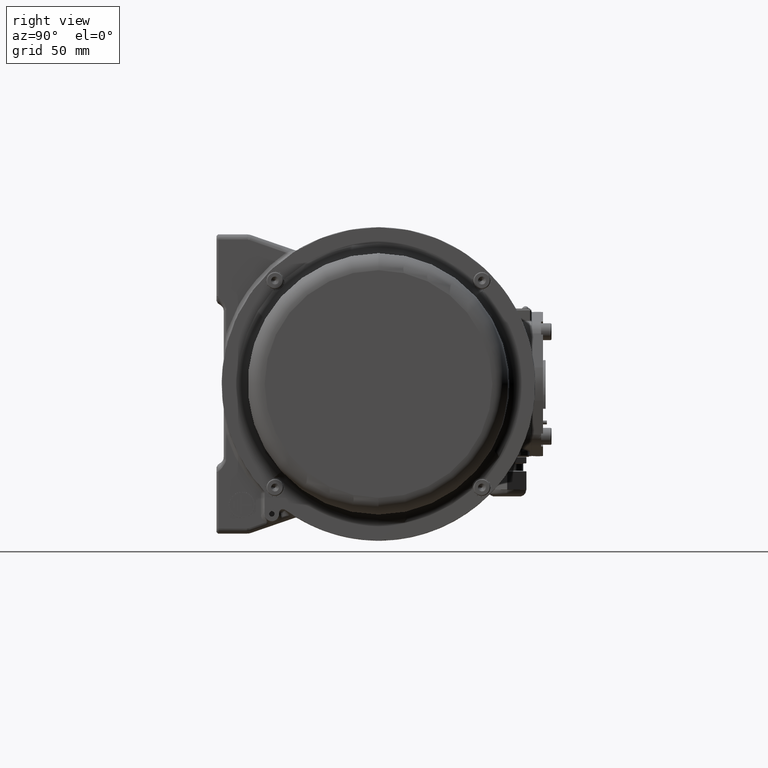
[diagram: clean part render]
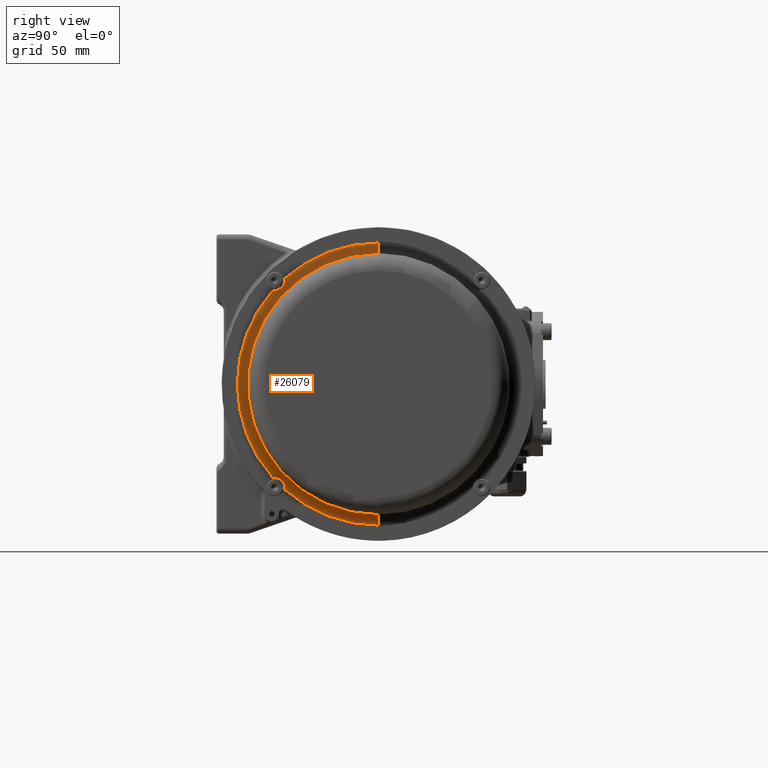
[diagram: same view with one face highlighted and labeled with its STEP entity id]
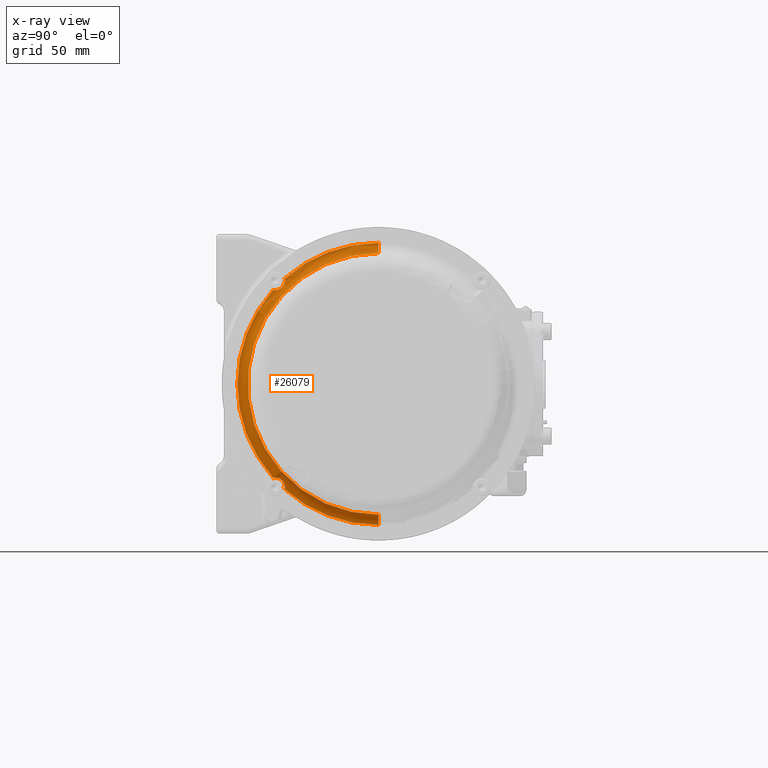
[diagram: x-ray of the same camera — body ghosted, the highlighted face saturated]
A machine part, right view. The second image highlights one B-rep face of the part: STEP entity #26079.
The next image is the same camera in x-ray: the body ghosted, the highlighted face saturated — about 0% of this face is hidden behind the body in this view.
In plain terms, the highlighted toroidal blend (fillet) surface has major radius 108.5 mm and minor (blend) radius 8 mm.
Its self-contained STEP definition (entity closure, byte-faithful):
#51 = ORIENTED_EDGE ( 'NONE', *, *, #132094, .T. ) ;
#60 = CARTESIAN_POINT ( 'NONE',  ( 111.8420498956300000, -43.88582275935325300, 73.30189940365770000 ) ) ;
#481 = B_SPLINE_CURVE_WITH_KNOTS ( 'NONE', 3,
 ( #172896, #65589, #80993, #188330 ),
 .UNSPECIFIED., .F., .F.,
 ( 4, 4 ),
 ( 0.006751035793015104000, 0.006953269603852640400 ),
 .UNSPECIFIED. ) ;
#630 = CARTESIAN_POINT ( 'NONE',  ( 111.8420498956300000, -44.88995432382945000, -72.19079341729239700 ) ) ;
#1609 = B_SPLINE_CURVE_WITH_KNOTS ( 'NONE', 3,
 ( #99178, #191098, #22698, #130022 ),
 .UNSPECIFIED., .F., .F.,
 ( 4, 4 ),
 ( 2.483688137834360200E-006, 0.0005613291327000745100 ),
 .UNSPECIFIED. ) ;
#1677 = CARTESIAN_POINT ( 'NONE',  ( 112.0752210845640800, -42.32397478651963500, -72.11289599017614200 ) ) ;
#2371 = EDGE_CURVE ( 'NONE', #163899, #196072, #193100, .T. ) ;
#2890 = CIRCLE ( 'NONE', #124764, 108.5000000000000000 ) ;
#4761 = ORIENTED_EDGE ( 'NONE', *, *, #195947, .F. ) ;
#5199 = VERTEX_POINT ( 'NONE', #132849 ) ;
#5236 = EDGE_CURVE ( 'NONE', #99633, #36353, #125765, .T. ) ;
#5850 = CARTESIAN_POINT ( 'NONE',  ( 112.6257674597845400, -37.47687606934471900, 74.96849447704070700 ) ) ;
#5991 = VERTEX_POINT ( 'NONE', #102080 ) ;
#6951 = CIRCLE ( 'NONE', #116452, 108.5000000000000000 ) ;
#7503 = EDGE_CURVE ( 'NONE', #157430, #135575, #177285, .T. ) ;
#8187 = DIRECTION ( 'NONE',  ( 1.321531958377189800E-016, 0.0000000000000000000, -1.000000000000000000 ) ) ;
#8709 = CIRCLE ( 'NONE', #64801, 108.5000000000000000 ) ;
#8807 = ORIENTED_EDGE ( 'NONE', *, *, #61356, .F. ) ;
#10979 = B_SPLINE_CURVE_WITH_KNOTS ( 'NONE', 3,
 ( #124174, #16849, #47682, #154985 ),
 .UNSPECIFIED., .F., .F.,
 ( 4, 4 ),
 ( 0.0001188698218495185400, 0.0004912911978566967700 ),
 .UNSPECIFIED. ) ;
#11070 = CARTESIAN_POINT ( 'NONE',  ( 112.5198977644838700, -38.58362746811074100, -74.19125443199489200 ) ) ;
#11131 = VERTEX_POINT ( 'NONE', #22274 ) ;
#12335 = AXIS2_PLACEMENT_3D ( 'NONE', #192049, #100118, #8187 ) ;
#12649 = CARTESIAN_POINT ( 'NONE',  ( 112.5699490064735800, -38.04639649115223000, 74.57120509917707800 ) ) ;
#12919 = CARTESIAN_POINT ( 'NONE',  ( 111.9964024334694300, -35.95780073525168100, -78.99146378952470100 ) ) ;
#13744 = CARTESIAN_POINT ( 'NONE',  ( 111.9074876328373300, -43.62213579719098500, 72.04764357947362900 ) ) ;
#14448 = CARTESIAN_POINT ( 'NONE',  ( 112.5870271494425800, -39.21730014543698000, 73.33273355225573200 ) ) ;
#14718 = DIRECTION ( 'NONE',  ( -1.000000000000000000, -3.469446951954334500E-018, -1.053574978650703900E-016 ) ) ;
#14729 = ORIENTED_EDGE ( 'NONE', *, *, #38791, .F. ) ;
#14770 = EDGE_LOOP ( 'NONE', ( #120169, #8807, #86693, #120550, #188113, #98905, #170669, #17335, #65893, #67474, #66444, #172595, #130737, #4761, #104908, #179977, #14729, #96964, #146582, #191799, #192338, #77611, #38389, #78160, #148244, #188167, #24013, #193482, #153692, #26440, #72644, #117509, #81120, #51 ) ) ;
#16824 = CARTESIAN_POINT ( 'NONE',  ( 111.8420498956300000, 36.10843668353454900, -4.163676230620184700E-014 ) ) ;
#16849 = CARTESIAN_POINT ( 'NONE',  ( 112.5365635887543800, -38.58881153000414300, -74.12968071128705100 ) ) ;
#17010 = CARTESIAN_POINT ( 'NONE',  ( 111.8490561906860000, -36.01623768078270200, 80.60865072355339600 ) ) ;
#17066 = CARTESIAN_POINT ( 'NONE',  ( 111.8680308510703400, -43.96106079898821400, -72.04776527091499400 ) ) ;
#17101 = B_SPLINE_CURVE_WITH_KNOTS ( 'NONE', 3,
 ( #106689, #121449, #91944, #60 ),
 .UNSPECIFIED., .F., .F.,
 ( 4, 4 ),
 ( 1.881930274056274600E-006, 0.001240401368589145200 ),
 .UNSPECIFIED. ) ;
#17335 = ORIENTED_EDGE ( 'NONE', *, *, #178540, .F. ) ;
#18015 = AXIS2_PLACEMENT_3D ( 'NONE', #180791, #88973, #196299 ) ;
#19001 = CIRCLE ( 'NONE', #154508, 108.5000000000000000 ) ;
#19588 = CARTESIAN_POINT ( 'NONE',  ( 111.8870103636902100, -35.95325773612955100, -79.97680043636060500 ) ) ;
#19690 = CARTESIAN_POINT ( 'NONE',  ( 111.8490561906860000, -44.50021404001860500, -72.12467436431759900 ) ) ;
#19788 = CARTESIAN_POINT ( 'NONE',  ( 111.8420498956300000, -36.25900132201496700, 80.76312731268734500 ) ) ;
#21098 = VERTEX_POINT ( 'NONE', #97899 ) ;
#22274 = CARTESIAN_POINT ( 'NONE',  ( 111.8870103636902100, -35.95325773612955100, -79.97680043636060500 ) ) ;
#22698 = CARTESIAN_POINT ( 'NONE',  ( 111.8420498956298800, -44.46453183604978000, -72.49550311787098200 ) ) ;
#24013 = ORIENTED_EDGE ( 'NONE', *, *, #46448, .F. ) ;
#24069 = CARTESIAN_POINT ( 'NONE',  ( 119.8420498956300100, 36.10843668353453500, 108.4999999999999600 ) ) ;
#24973 = FACE_OUTER_BOUND ( 'NONE', #14770, .T. ) ;
#26079 = ADVANCED_FACE ( 'NONE', ( #24973 ), #87337, .F. ) ;
#26440 = ORIENTED_EDGE ( 'NONE', *, *, #194534, .F. ) ;
#26553 = CARTESIAN_POINT ( 'NONE',  ( 112.4877685105482100, -38.66496212051189500, -74.21473860660800900 ) ) ;
#28049 = B_SPLINE_CURVE_WITH_KNOTS ( 'NONE', 3,
 ( #82293, #5850, #37363, #144622, #52788, #160072, #68207, #175517, #83638, #190963 ),
 .UNSPECIFIED., .F., .F.,
 ( 4, 2, 2, 2, 4 ),
 ( 6.759244170750891700E-006, 0.001644570974715738000, 0.003282382705260724700, 0.004920194435805712000, 0.006558006166350698700 ),
 .UNSPECIFIED. ) ;
#28129 = CARTESIAN_POINT ( 'NONE',  ( 112.5364732288682000, -38.07073905484065100, 74.65170348619879800 ) ) ;
#28405 = CARTESIAN_POINT ( 'NONE',  ( 112.1462009766611500, -36.08324267808023900, -78.01557025029306700 ) ) ;
#29870 = CARTESIAN_POINT ( 'NONE',  ( 112.6420498956300100, -38.44644202796184400, 73.95454822872889600 ) ) ;
#30132 = CARTESIAN_POINT ( 'NONE',  ( 111.8420498956300000, -36.06928962599144500, 80.93202436223359100 ) ) ;
#30582 = VERTEX_POINT ( 'NONE', #134010 ) ;
#31782 = DIRECTION ( 'NONE',  ( -1.000000000000000000, 1.714077650504639900E-032, 2.832402298722609900E-018 ) ) ;
#32261 = DIRECTION ( 'NONE',  ( 0.0000000000000000000, 0.0000000000000000000, -1.000000000000000000 ) ) ;
#32449 = CARTESIAN_POINT ( 'NONE',  ( 111.8444632090095200, -36.20152907129149600, 80.59002493914692900 ) ) ;
#34311 = CARTESIAN_POINT ( 'NONE',  ( 111.8740538925732000, -35.96469288689860400, -80.14423345341700200 ) ) ;
#34386 = CIRCLE ( 'NONE', #86095, 105.0128808451673900 ) ;
#36097 = CARTESIAN_POINT ( 'NONE',  ( 112.6420498956300100, -37.99505181014745100, 74.40684200037040300 ) ) ;
#36353 = VERTEX_POINT ( 'NONE', #34311 ) ;
#37155 = DIRECTION ( 'NONE',  ( -1.000000000000000000, 1.714077650504639900E-032, 2.832402298722609900E-018 ) ) ;
#37363 = CARTESIAN_POINT ( 'NONE',  ( 112.5778733840662800, -37.16169772394431400, 75.41262721611858000 ) ) ;
#38079 = VERTEX_POINT ( 'NONE', #41404 ) ;
#38389 = ORIENTED_EDGE ( 'NONE', *, *, #189850, .F. ) ;
#38791 = EDGE_CURVE ( 'NONE', #105149, #198562, #133896, .T. ) ;
#39209 = B_SPLINE_CURVE_WITH_KNOTS ( 'NONE', 3,
 ( #43139, #134980, #104858, #12919, #120280, #28405, #135653, #43800, #151100, #59227, #166529, #74673, #181954, #90107 ),
 .UNSPECIFIED., .F., .F.,
 ( 4, 2, 2, 2, 2, 2, 4 ),
 ( 0.004795156085363194000, 0.005535358833647006200, 0.006275561581930818400, 0.007755967078498449800, 0.008496169826782269000, 0.009236372575066086400, 0.01071677807163372500 ),
 .UNSPECIFIED. ) ;
#39469 = DIRECTION ( 'NONE',  ( 0.0000000000000000000, 0.0000000000000000000, -1.000000000000000000 ) ) ;
#41052 = VERTEX_POINT ( 'NONE', #36097 ) ;
#41404 = CARTESIAN_POINT ( 'NONE',  ( 112.6420498956300100, -38.44644202796189300, -73.95454822872901000 ) ) ;
#43139 = CARTESIAN_POINT ( 'NONE',  ( 111.8870103636902100, -35.95325773612955100, -79.97680043636060500 ) ) ;
#43384 = VERTEX_POINT ( 'NONE', #93452 ) ;
#43533 = CARTESIAN_POINT ( 'NONE',  ( 112.5036575374300400, -38.09470383843019900, 74.73262323008660200 ) ) ;
#43800 = CARTESIAN_POINT ( 'NONE',  ( 112.3534336911470500, -36.44009618143410700, -76.84834474557048600 ) ) ;
#43829 = VERTEX_POINT ( 'NONE', #73105 ) ;
#44329 = CARTESIAN_POINT ( 'NONE',  ( 111.8439195439227900, -36.04591255289024300, 80.79913467954240500 ) ) ;
#44602 = CARTESIAN_POINT ( 'NONE',  ( 111.9341069294922900, -43.37587781290431400, 72.04574185538470500 ) ) ;
#44784 = DIRECTION ( 'NONE',  ( -1.000000000000000000, 1.714077650504639900E-032, 2.832402298722609900E-018 ) ) ;
#45142 = CARTESIAN_POINT ( 'NONE',  ( 111.8420498956300000, -44.88995432382950000, 72.19079341729218400 ) ) ;
#45456 = CARTESIAN_POINT ( 'NONE',  ( 111.8420498956297800, -36.78502156970282800, -80.05482579214626100 ) ) ;
#46448 = EDGE_CURVE ( 'NONE', #11131, #21098, #39209, .T. ) ;
#47218 = CARTESIAN_POINT ( 'NONE',  ( 112.6420498956300100, -38.44644202796189300, -73.95454822872901000 ) ) ;
#47682 = CARTESIAN_POINT ( 'NONE',  ( 112.5879896737014300, -38.51344409867239400, -74.04549758096487700 ) ) ;
#47864 = CARTESIAN_POINT ( 'NONE',  ( 111.8420498956300000, -36.57279362661005000, 80.55860451003179900 ) ) ;
#50633 = CARTESIAN_POINT ( 'NONE',  ( 111.8439195439227900, -36.04591255289024300, 80.79913467954240500 ) ) ;
#52121 = EDGE_CURVE ( 'NONE', #102199, #185448, #144409, .T. ) ;
#52237 = EDGE_CURVE ( 'NONE', #56084, #144283, #73051, .T. ) ;
#52788 = CARTESIAN_POINT ( 'NONE',  ( 112.3501730843897000, -36.41624959881043100, 76.86744736616121500 ) ) ;
#53564 = CARTESIAN_POINT ( 'NONE',  ( 111.8420498956300100, 36.10843668353453500, 108.4999999999999600 ) ) ;
#53666 = EDGE_CURVE ( 'NONE', #83081, #152985, #65033, .T. ) ;
#54004 = CARTESIAN_POINT ( 'NONE',  ( 112.6420498956300100, -38.44644202796184400, 73.95454822872889600 ) ) ;
#56084 = VERTEX_POINT ( 'NONE', #142645 ) ;
#57931 = DIRECTION ( 'NONE',  ( -1.000000000000000000, 1.081899001637929800E-016, -6.370446532313630500E-019 ) ) ;
#58228 = CARTESIAN_POINT ( 'NONE',  ( 111.8420498956300000, 36.10843668353454900, -4.163676230620184700E-014 ) ) ;
#59227 = CARTESIAN_POINT ( 'NONE',  ( 112.4664251500375900, -36.73926606772082000, -76.17373359555919900 ) ) ;
#59710 = CARTESIAN_POINT ( 'NONE',  ( 111.8420498956300000, -44.60694128130660400, 72.13507021599789900 ) ) ;
#60062 = CARTESIAN_POINT ( 'NONE',  ( 112.0322109637515100, -42.63582042730568800, 72.08883351261188500 ) ) ;
#60135 = CARTESIAN_POINT ( 'NONE',  ( 112.6420498956300100, -37.85375357285844400, 74.54729744181510400 ) ) ;
#60232 = AXIS2_PLACEMENT_3D ( 'NONE', #24069, #131333, #39469 ) ;
#60969 = CARTESIAN_POINT ( 'NONE',  ( 111.8420498956300000, -36.08235673375749300, 80.99839100736420500 ) ) ;
#61356 = EDGE_CURVE ( 'NONE', #135575, #163899, #71430, .T. ) ;
#64366 = DIRECTION ( 'NONE',  ( -1.000000000000000000, 1.714077650504639900E-032, 2.832402298722609900E-018 ) ) ;
#64470 = VERTEX_POINT ( 'NONE', #97819 ) ;
#64801 = AXIS2_PLACEMENT_3D ( 'NONE', #16824, #124151, #32261 ) ;
#65033 = CIRCLE ( 'NONE', #18015, 7.999999999999992900 ) ;
#65589 = CARTESIAN_POINT ( 'NONE',  ( 111.8426856796657600, -44.75716930920930300, -72.16558144246593500 ) ) ;
#65893 = ORIENTED_EDGE ( 'NONE', *, *, #147068, .F. ) ;
#65957 = AXIS2_PLACEMENT_3D ( 'NONE', #79093, #186400, #94503 ) ;
#66444 = ORIENTED_EDGE ( 'NONE', *, *, #66544, .F. ) ;
#66544 = EDGE_CURVE ( 'NONE', #182928, #41052, #80130, .T. ) ;
#66582 = CARTESIAN_POINT ( 'NONE',  ( 111.8420498956300000, -44.63669141705279500, -72.47395592914570300 ) ) ;
#66691 = CARTESIAN_POINT ( 'NONE',  ( 111.8420498956300000, -43.81729189350895100, 72.95668143367910800 ) ) ;
#67474 = ORIENTED_EDGE ( 'NONE', *, *, #193037, .F. ) ;
#68207 = CARTESIAN_POINT ( 'NONE',  ( 112.0752210845640800, -36.00445930664130900, 78.43241147005436200 ) ) ;
#68784 = CARTESIAN_POINT ( 'NONE',  ( 111.8420498956300000, -36.08235673375744300, -80.99839100736430500 ) ) ;
#70737 = EDGE_CURVE ( 'NONE', #196205, #30582, #17101, .T. ) ;
#71091 = AXIS2_PLACEMENT_3D ( 'NONE', #182589, #90725, #198071 ) ;
#71430 = CIRCLE ( 'NONE', #77647, 108.5000000000000000 ) ;
#71616 = DIRECTION ( 'NONE',  ( -1.000000000000000000, 1.714077650504639900E-032, 2.832402298722609900E-018 ) ) ;
#72644 = ORIENTED_EDGE ( 'NONE', *, *, #5236, .F. ) ;
#73051 = B_SPLINE_CURVE_WITH_KNOTS ( 'NONE', 3,
 ( #164013, #147906, #117096, #179451, #87588, #194919, #102996, #11070, #118395, #26553 ),
 .UNSPECIFIED., .F., .F.,
 ( 4, 3, 3, 4 ),
 ( 0.0000000000000000000, 0.0001414261269657685200, 0.0002771968098196983400, 0.0004130166647837225800 ),
 .UNSPECIFIED. ) ;
#73105 = CARTESIAN_POINT ( 'NONE',  ( 111.8420498956300000, -44.45016782649700100, -72.68123031014499700 ) ) ;
#73673 = DIRECTION ( 'NONE',  ( 0.0000000000000000000, 0.0000000000000000000, -1.000000000000000000 ) ) ;
#73729 = CARTESIAN_POINT ( 'NONE',  ( 112.6420498956300100, -37.99505181014745100, 74.40684200037040300 ) ) ;
#74673 = CARTESIAN_POINT ( 'NONE',  ( 112.5870271494425600, -37.22429686872087700, -75.32573682897192700 ) ) ;
#75473 = CARTESIAN_POINT ( 'NONE',  ( 112.2313989372640900, -41.43394315705105400, 72.30647905338388200 ) ) ;
#75664 = CARTESIAN_POINT ( 'NONE',  ( 111.8522389114417000, -36.37487265917637600, -80.10237338193705600 ) ) ;
#77325 = AXIS2_PLACEMENT_3D ( 'NONE', #129033, #37155, #144421 ) ;
#77611 = ORIENTED_EDGE ( 'NONE', *, *, #153904, .F. ) ;
#77647 = AXIS2_PLACEMENT_3D ( 'NONE', #136674, #44784, #152088 ) ;
#77751 = CIRCLE ( 'NONE', #71091, 105.0128808451673900 ) ;
#78096 = CARTESIAN_POINT ( 'NONE',  ( 112.4405184163557000, -40.25112754575029300, -72.74006028776509000 ) ) ;
#78160 = ORIENTED_EDGE ( 'NONE', *, *, #87858, .F. ) ;
#79093 = CARTESIAN_POINT ( 'NONE',  ( 111.8420498956300000, 36.10843668353454900, -4.163676230620184700E-014 ) ) ;
#79260 = EDGE_CURVE ( 'NONE', #5991, #188840, #8709, .T. ) ;
#80130 = CIRCLE ( 'NONE', #12335, 105.0128808451674000 ) ;
#80993 = CARTESIAN_POINT ( 'NONE',  ( 111.8420498956300000, -44.82358767869882100, -72.17772630952630700 ) ) ;
#81120 = ORIENTED_EDGE ( 'NONE', *, *, #53666, .T. ) ;
#82293 = CARTESIAN_POINT ( 'NONE',  ( 112.6420498956300100, -37.84611154519420500, 74.55487871149658500 ) ) ;
#83081 = VERTEX_POINT ( 'NONE', #98313 ) ;
#83638 = CARTESIAN_POINT ( 'NONE',  ( 111.8680308510702900, -35.93932858738016700, 80.06949748252300500 ) ) ;
#85276 = CARTESIAN_POINT ( 'NONE',  ( 119.8420498956300100, 36.10843668353454900, -4.165942152459159300E-014 ) ) ;
#86095 = AXIS2_PLACEMENT_3D ( 'NONE', #149784, #57931, #165253 ) ;
#86604 = DIRECTION ( 'NONE',  ( -1.000000000000000000, 1.714077650504639900E-032, 2.832402298722609900E-018 ) ) ;
#86693 = ORIENTED_EDGE ( 'NONE', *, *, #7503, .F. ) ;
#87291 = CARTESIAN_POINT ( 'NONE',  ( 111.8420498956300000, -36.02663353246309400, -80.71537796484143700 ) ) ;
#87337 = TOROIDAL_SURFACE ( 'NONE', #97888, 108.5000000000000000, 8.000000000000000000 ) ;
#87588 = CARTESIAN_POINT ( 'NONE',  ( 112.5699490064737500, -38.46276841564237300, -74.15483317468714100 ) ) ;
#87858 = EDGE_CURVE ( 'NONE', #144283, #43384, #10979, .T. ) ;
#88973 = DIRECTION ( 'NONE',  ( 1.714077650504639900E-032, 1.000000000000000000, -4.854957477478392200E-050 ) ) ;
#90107 = CARTESIAN_POINT ( 'NONE',  ( 112.6420498956300100, -37.84611154519404900, -74.55487871149679800 ) ) ;
#90571 = CARTESIAN_POINT ( 'NONE',  ( 111.8740538925732000, -44.03579676988219700, 72.07312957043339500 ) ) ;
#90725 = DIRECTION ( 'NONE',  ( -1.000000000000000000, 1.081899001637929800E-016, -6.370446532313630500E-019 ) ) ;
#90929 = CARTESIAN_POINT ( 'NONE',  ( 112.3932964092271300, -40.51032861078955000, 72.64148397374008000 ) ) ;
#91409 = CARTESIAN_POINT ( 'NONE',  ( 112.4877685105482100, -38.10630192307314700, 74.77339880404659300 ) ) ;
#91944 = CARTESIAN_POINT ( 'NONE',  ( 111.8420498956297800, -43.94638910861138500, 72.89345825323758300 ) ) ;
#93452 = CARTESIAN_POINT ( 'NONE',  ( 112.6420498956300100, -38.43886075828039800, -73.96219025639331300 ) ) ;
#93553 = CARTESIAN_POINT ( 'NONE',  ( 112.1678627411796600, -41.79314871702260300, -72.21289246081681800 ) ) ;
#93665 = EDGE_CURVE ( 'NONE', #185448, #105149, #481, .T. ) ;
#94503 = DIRECTION ( 'NONE',  ( 0.0000000000000000000, 0.0000000000000000000, -1.000000000000000000 ) ) ;
#95008 = CARTESIAN_POINT ( 'NONE',  ( 111.8740538925732000, -44.03579676988219700, 72.07312957043339500 ) ) ;
#96964 = ORIENTED_EDGE ( 'NONE', *, *, #93665, .F. ) ;
#97530 = CARTESIAN_POINT ( 'NONE',  ( 111.8420498956300000, -43.79174091291584900, 73.40443869450730600 ) ) ;
#97819 = CARTESIAN_POINT ( 'NONE',  ( 111.8870103636902100, -43.86836375282575100, 72.06169441966429200 ) ) ;
#97888 = AXIS2_PLACEMENT_3D ( 'NONE', #85276, #86604, #193927 ) ;
#97899 = CARTESIAN_POINT ( 'NONE',  ( 112.6420498956300100, -37.84611154519404900, -74.55487871149679800 ) ) ;
#98024 = EDGE_CURVE ( 'NONE', #161721, #43829, #1609, .T. ) ;
#98202 = CARTESIAN_POINT ( 'NONE',  ( 111.8870103636902100, -43.86836375282575100, 72.06169441966429200 ) ) ;
#98313 = CARTESIAN_POINT ( 'NONE',  ( 111.8420498956300100, 36.10843668353454900, -108.5000000000000400 ) ) ;
#98905 = ORIENTED_EDGE ( 'NONE', *, *, #142965, .F. ) ;
#99178 = CARTESIAN_POINT ( 'NONE',  ( 111.8490561906860000, -44.50021404001860500, -72.12467436431759900 ) ) ;
#99633 = VERTEX_POINT ( 'NONE', #68784 ) ;
#99742 = CARTESIAN_POINT ( 'NONE',  ( 111.8420498956300000, -44.65469062915254000, -72.36743800554984300 ) ) ;
#100118 = DIRECTION ( 'NONE',  ( -1.000000000000000000, -3.469446951954334500E-018, -1.053574978650703900E-016 ) ) ;
#100220 = EDGE_CURVE ( 'NONE', #188840, #157430, #117184, .T. ) ;
#102080 = CARTESIAN_POINT ( 'NONE',  ( 111.8420498956300000, -36.57279362661005000, 80.55860451003179900 ) ) ;
#102199 = VERTEX_POINT ( 'NONE', #66582 ) ;
#102688 = CARTESIAN_POINT ( 'NONE',  ( 111.8740538925732000, -35.96469288689860400, -80.14423345341700200 ) ) ;
#102873 = CARTESIAN_POINT ( 'NONE',  ( 111.8420498956300000, -43.79174091291584900, 73.40443869450730600 ) ) ;
#102996 = CARTESIAN_POINT ( 'NONE',  ( 112.5364732288682000, -38.54326680266410000, -74.17917573837550500 ) ) ;
#104589 = CARTESIAN_POINT ( 'NONE',  ( 112.5871769895614000, -38.03401757876040500, 74.53122842424589600 ) ) ;
#104858 = CARTESIAN_POINT ( 'NONE',  ( 111.9341069294923000, -35.93730517184992800, -79.48431449643919700 ) ) ;
#104908 = ORIENTED_EDGE ( 'NONE', *, *, #70737, .F. ) ;
#105149 = VERTEX_POINT ( 'NONE', #630 ) ;
#106059 = EDGE_CURVE ( 'NONE', #83081, #99633, #132543, .T. ) ;
#106341 = CARTESIAN_POINT ( 'NONE',  ( 112.4998684749678300, -39.84887433854358800, 72.96120937348712200 ) ) ;
#106532 = CARTESIAN_POINT ( 'NONE',  ( 111.8740538925732000, -35.96469288689860400, -80.14423345341700200 ) ) ;
#106609 = CARTESIAN_POINT ( 'NONE',  ( 112.6420498956300100, 36.10843668353454900, -4.241799550922014500E-014 ) ) ;
#106689 = CARTESIAN_POINT ( 'NONE',  ( 111.8740538925732000, -44.03579676988219700, 72.07312957043339500 ) ) ;
#106808 = CARTESIAN_POINT ( 'NONE',  ( 112.6420498956300100, -37.85375357285844400, 74.54729744181510400 ) ) ;
#108970 = CARTESIAN_POINT ( 'NONE',  ( 111.9237449298183700, -43.41841061240824500, -72.02949475472493600 ) ) ;
#109386 = CARTESIAN_POINT ( 'NONE',  ( 112.6234188720519100, -38.00810717010341500, 74.44813140205091900 ) ) ;
#110880 = CARTESIAN_POINT ( 'NONE',  ( 112.4877685105482100, -38.66496212051189500, -74.21473860660800900 ) ) ;
#111460 = CARTESIAN_POINT ( 'NONE',  ( 111.8571435829804000, -36.40066457900733400, -79.95126945212739100 ) ) ;
#111715 = CARTESIAN_POINT ( 'NONE',  ( 112.6420498956300100, -37.84611154519420500, 74.55487871149658500 ) ) ;
#112431 = EDGE_CURVE ( 'NONE', #64470, #182928, #119128, .T. ) ;
#113038 = B_SPLINE_CURVE_WITH_KNOTS ( 'NONE', 3,
 ( #97530, #66691, #190107, #98202 ),
 .UNSPECIFIED., .F., .F.,
 ( 4, 4 ),
 ( 0.0008659886960411495700, 0.002211352879200693800 ),
 .UNSPECIFIED. ) ;
#113421 = B_SPLINE_CURVE_WITH_KNOTS ( 'NONE', 3,
 ( #17010, #32449, #139721, #47864 ),
 .UNSPECIFIED., .F., .F.,
 ( 4, 4 ),
 ( 2.483688137819917800E-006, 0.0005613291327000244200 ),
 .UNSPECIFIED. ) ;
#115163 = CARTESIAN_POINT ( 'NONE',  ( 111.8420498956300000, -44.63669141705279500, -72.47395592914570300 ) ) ;
#116452 = AXIS2_PLACEMENT_3D ( 'NONE', #58228, #165555, #73673 ) ;
#117096 = CARTESIAN_POINT ( 'NONE',  ( 112.6051226421559300, -38.38114974950797600, -74.12955967909613300 ) ) ;
#117184 = B_SPLINE_CURVE_WITH_KNOTS ( 'NONE', 3,
 ( #127101, #19788, #142489, #50633 ),
 .UNSPECIFIED., .F., .F.,
 ( 4, 4 ),
 ( 0.001888163587158725700, 0.002212114004944795300 ),
 .UNSPECIFIED. ) ;
#117509 = ORIENTED_EDGE ( 'NONE', *, *, #106059, .F. ) ;
#118395 = CARTESIAN_POINT ( 'NONE',  ( 112.5036575374300400, -38.62418654655189000, -74.20314052196511100 ) ) ;
#118893 = EDGE_CURVE ( 'NONE', #5199, #158681, #2890, .T. ) ;
#119128 = B_SPLINE_CURVE_WITH_KNOTS ( 'NONE', 3,
 ( #121093, #13744, #44602, #151905, #60062, #167350, #75473, #182789, #90929, #198262, #106341, #14448, #121772, #29870 ),
 .UNSPECIFIED., .F., .F.,
 ( 4, 2, 2, 2, 2, 2, 4 ),
 ( 0.004795156085363266000, 0.005535358833647086000, 0.006275561581930906100, 0.007755967078498552200, 0.008496169826782378300, 0.009236372575066206100, 0.01071677807163387600 ),
 .UNSPECIFIED. ) ;
#120007 = CARTESIAN_POINT ( 'NONE',  ( 112.5530428340912000, -38.05866463084609600, 74.61135708760132000 ) ) ;
#120169 = ORIENTED_EDGE ( 'NONE', *, *, #2371, .F. ) ;
#120280 = CARTESIAN_POINT ( 'NONE',  ( 112.0322109637515200, -35.98039682907709400, -78.74425711084057900 ) ) ;
#120550 = ORIENTED_EDGE ( 'NONE', *, *, #100220, .F. ) ;
#121093 = CARTESIAN_POINT ( 'NONE',  ( 111.8870103636902100, -43.86836375282575100, 72.06169441966429200 ) ) ;
#121449 = CARTESIAN_POINT ( 'NONE',  ( 111.8522389114417300, -43.99393669840220200, 72.48330934271118100 ) ) ;
#121772 = CARTESIAN_POINT ( 'NONE',  ( 112.6273597982843900, -38.81960829848730300, 73.62142208377366600 ) ) ;
#122053 = DIRECTION ( 'NONE',  ( 1.321531958377189800E-016, -1.022495706835599400E-011, -1.000000000000000000 ) ) ;
#123472 = CARTESIAN_POINT ( 'NONE',  ( 111.8420498956300000, -36.36551924561079800, 80.74512810058749300 ) ) ;
#123657 = CARTESIAN_POINT ( 'NONE',  ( 119.8420498956300100, 36.10843668353454900, -4.165942152459159300E-014 ) ) ;
#124151 = DIRECTION ( 'NONE',  ( -1.000000000000000000, 1.714077650504639900E-032, 2.832402298722609900E-018 ) ) ;
#124174 = CARTESIAN_POINT ( 'NONE',  ( 112.4877685105482100, -38.66496212051189500, -74.21473860660800900 ) ) ;
#124405 = CARTESIAN_POINT ( 'NONE',  ( 111.8490561906860000, -44.50021404001860500, -72.12467436431759900 ) ) ;
#124569 = B_SPLINE_CURVE_WITH_KNOTS ( 'NONE', 3,
 ( #187939, #169839, #111460, #19588 ),
 .UNSPECIFIED., .F., .F.,
 ( 4, 4 ),
 ( 0.0008659886960411555300, 0.002211352879200690700 ),
 .UNSPECIFIED. ) ;
#124616 = VERTEX_POINT ( 'NONE', #111715 ) ;
#124764 = AXIS2_PLACEMENT_3D ( 'NONE', #156215, #64366, #171628 ) ;
#125765 = B_SPLINE_CURVE_WITH_KNOTS ( 'NONE', 3,
 ( #194630, #87291, #148266, #102688 ),
 .UNSPECIFIED., .F., .F.,
 ( 4, 4 ),
 ( 0.003771163714130114500, 0.004627375624838926700 ),
 .UNSPECIFIED. ) ;
#127101 = CARTESIAN_POINT ( 'NONE',  ( 111.8420498956300000, -36.36551924561079800, 80.74512810058749300 ) ) ;
#128947 = AXIS2_PLACEMENT_3D ( 'NONE', #106609, #14718, #122053 ) ;
#129033 = CARTESIAN_POINT ( 'NONE',  ( 111.8420498956300000, 36.10843668353454900, -4.163676230620184700E-014 ) ) ;
#130022 = CARTESIAN_POINT ( 'NONE',  ( 111.8420498956300000, -44.45016782649700100, -72.68123031014499700 ) ) ;
#130398 = EDGE_CURVE ( 'NONE', #43829, #102199, #6951, .T. ) ;
#130571 = CARTESIAN_POINT ( 'NONE',  ( 111.8439195439227900, -44.69069799600760000, -72.15434923642509100 ) ) ;
#130737 = ORIENTED_EDGE ( 'NONE', *, *, #186422, .F. ) ;
#131333 = DIRECTION ( 'NONE',  ( -1.748764574594922500E-032, -1.000000000000000000, -1.224646799147353200E-016 ) ) ;
#132094 = EDGE_CURVE ( 'NONE', #152985, #196072, #175020, .T. ) ;
#132543 = CIRCLE ( 'NONE', #65957, 108.5000000000000000 ) ;
#132849 = CARTESIAN_POINT ( 'NONE',  ( 111.8420498956300000, -37.19346272012295200, -79.99425944288809400 ) ) ;
#133450 = CARTESIAN_POINT ( 'NONE',  ( 119.8420498956300100, 36.10843668353454900, -100.5000000000000400 ) ) ;
#133896 = CIRCLE ( 'NONE', #77325, 108.5000000000000000 ) ;
#134010 = CARTESIAN_POINT ( 'NONE',  ( 111.8420498956300000, -43.88582275935325300, 73.30189940365770000 ) ) ;
#134980 = CARTESIAN_POINT ( 'NONE',  ( 111.9074876328373400, -35.93920689593883100, -79.73057248072586800 ) ) ;
#135365 = B_SPLINE_CURVE_WITH_KNOTS ( 'NONE', 3,
 ( #91409, #183250, #198753, #106808 ),
 .UNSPECIFIED., .F., .F.,
 ( 4, 4 ),
 ( 0.0001188698218494852500, 0.0004912911978566573100 ),
 .UNSPECIFIED. ) ;
#135381 = CARTESIAN_POINT ( 'NONE',  ( 112.5198977644838700, -38.08281774846005200, 74.69206415164544000 ) ) ;
#135575 = VERTEX_POINT ( 'NONE', #175804 ) ;
#135653 = CARTESIAN_POINT ( 'NONE',  ( 112.2313989372640700, -36.19804236984909800, -77.54237984058593700 ) ) ;
#136674 = CARTESIAN_POINT ( 'NONE',  ( 111.8420498956300000, 36.10843668353454900, -4.163676230620184700E-014 ) ) ;
#139068 = DIRECTION ( 'NONE',  ( 0.0000000000000000000, 0.0000000000000000000, -1.000000000000000000 ) ) ;
#139128 = CARTESIAN_POINT ( 'NONE',  ( 112.6257674597845700, -38.86005779350598700, -73.58531275287950300 ) ) ;
#139721 = CARTESIAN_POINT ( 'NONE',  ( 111.8420498956298800, -36.38706643433604900, 80.57296851958457800 ) ) ;
#141061 = EDGE_CURVE ( 'NONE', #158681, #11131, #124569, .T. ) ;
#142489 = CARTESIAN_POINT ( 'NONE',  ( 111.8426752610515300, -36.15246569693639600, 80.78112951595264200 ) ) ;
#142645 = CARTESIAN_POINT ( 'NONE',  ( 112.6420498956300100, -38.29840531683564800, -74.10348849368220700 ) ) ;
#142965 = EDGE_CURVE ( 'NONE', #175900, #5991, #113421, .T. ) ;
#144283 = VERTEX_POINT ( 'NONE', #110880 ) ;
#144409 = B_SPLINE_CURVE_WITH_KNOTS ( 'NONE', 3,
 ( #115163, #99742, #191671, #130571 ),
 .UNSPECIFIED., .F., .F.,
 ( 4, 4 ),
 ( 0.001888163587158691900, 0.002212114004944792200 ),
 .UNSPECIFIED. ) ;
#144421 = DIRECTION ( 'NONE',  ( 0.0000000000000000000, 0.0000000000000000000, -1.000000000000000000 ) ) ;
#144622 = CARTESIAN_POINT ( 'NONE',  ( 112.4405184163557200, -36.63162360423025600, 76.35956422928504100 ) ) ;
#146582 = ORIENTED_EDGE ( 'NONE', *, *, #52121, .F. ) ;
#147068 = EDGE_CURVE ( 'NONE', #194877, #197263, #135365, .T. ) ;
#147206 = CIRCLE ( 'NONE', #128947, 105.0128808451674000 ) ;
#147906 = CARTESIAN_POINT ( 'NONE',  ( 112.6234188720519300, -38.33969471851616400, -74.11654385363817700 ) ) ;
#148244 = ORIENTED_EDGE ( 'NONE', *, *, #52237, .F. ) ;
#148266 = CARTESIAN_POINT ( 'NONE',  ( 111.8536950141710100, -35.98734856078669300, -80.42904368324103400 ) ) ;
#149784 = CARTESIAN_POINT ( 'NONE',  ( 112.6420498956300100, 36.10843668353454900, -4.166400824609489700E-014 ) ) ;
#149874 = AXIS2_PLACEMENT_3D ( 'NONE', #123657, #31782, #139068 ) ;
#150819 = CARTESIAN_POINT ( 'NONE',  ( 112.4877685105482100, -38.10630192307314700, 74.77339880404659300 ) ) ;
#151100 = CARTESIAN_POINT ( 'NONE',  ( 112.3932964092270900, -36.53304729020524600, -76.61876529432446100 ) ) ;
#151905 = CARTESIAN_POINT ( 'NONE',  ( 111.9964024334693700, -42.88302710598983900, 72.06623741878645700 ) ) ;
#152088 = DIRECTION ( 'NONE',  ( 0.0000000000000000000, 0.0000000000000000000, -1.000000000000000000 ) ) ;
#152171 = CARTESIAN_POINT ( 'NONE',  ( 111.8426856796657600, -36.05714475893108100, 80.86560599274407900 ) ) ;
#152762 = CARTESIAN_POINT ( 'NONE',  ( 111.8420498956300000, -37.19346272012295200, -79.99425944288809400 ) ) ;
#152843 = CARTESIAN_POINT ( 'NONE',  ( 111.8439195439227900, -36.04591255289024300, 80.79913467954240500 ) ) ;
#152985 = VERTEX_POINT ( 'NONE', #133450 ) ;
#153369 = CARTESIAN_POINT ( 'NONE',  ( 119.8420498956300100, 36.10843668353453500, 100.4999999999999700 ) ) ;
#153692 = ORIENTED_EDGE ( 'NONE', *, *, #118893, .F. ) ;
#153904 = EDGE_CURVE ( 'NONE', #38079, #161721, #161098, .T. ) ;
#154100 = CARTESIAN_POINT ( 'NONE',  ( 111.8420498956300000, -37.29600201097255100, -79.90017759645070300 ) ) ;
#154508 = AXIS2_PLACEMENT_3D ( 'NONE', #163476, #71616, #178890 ) ;
#154985 = CARTESIAN_POINT ( 'NONE',  ( 112.6420498956300100, -38.43886075828039800, -73.96219025639331300 ) ) ;
#156215 = CARTESIAN_POINT ( 'NONE',  ( 111.8420498956300000, 36.10843668353454900, -4.163676230620184700E-014 ) ) ;
#157066 = B_SPLINE_CURVE_WITH_KNOTS ( 'NONE', 3,
 ( #106532, #75664, #45456, #152762 ),
 .UNSPECIFIED., .F., .F.,
 ( 4, 4 ),
 ( 1.881930274027947700E-006, 0.001240401368589159500 ),
 .UNSPECIFIED. ) ;
#157430 = VERTEX_POINT ( 'NONE', #44329 ) ;
#158529 = CARTESIAN_POINT ( 'NONE',  ( 112.4877685105482100, -38.10630192307314700, 74.77339880404659300 ) ) ;
#158681 = VERTEX_POINT ( 'NONE', #154100 ) ;
#159690 = B_SPLINE_CURVE_WITH_KNOTS ( 'NONE', 3,
 ( #166319, #59710, #182440, #90571 ),
 .UNSPECIFIED., .F., .F.,
 ( 4, 4 ),
 ( 0.003771163714130153600, 0.004627375624838956200 ),
 .UNSPECIFIED. ) ;
#159807 = EDGE_CURVE ( 'NONE', #21098, #56084, #77751, .T. ) ;
#160072 = CARTESIAN_POINT ( 'NONE',  ( 112.1678627411796600, -36.10445577728198400, 77.90158540055732300 ) ) ;
#161098 = B_SPLINE_CURVE_WITH_KNOTS ( 'NONE', 3,
 ( #47218, #139128, #169995, #78096, #185421, #93553, #1677, #108970, #17066, #124405 ),
 .UNSPECIFIED., .F., .F.,
 ( 4, 2, 2, 2, 4 ),
 ( 6.759244171321439500E-006, 0.001644570974716285000, 0.003282382705261248600, 0.004920194435806212400, 0.006558006166351175800 ),
 .UNSPECIFIED. ) ;
#161721 = VERTEX_POINT ( 'NONE', #19690 ) ;
#163476 = CARTESIAN_POINT ( 'NONE',  ( 111.8420498956300000, 36.10843668353454900, -4.163676230620184700E-014 ) ) ;
#163899 = VERTEX_POINT ( 'NONE', #53564 ) ;
#164013 = CARTESIAN_POINT ( 'NONE',  ( 112.6420498956300100, -38.29840531683564800, -74.10348849368220700 ) ) ;
#164655 = VERTEX_POINT ( 'NONE', #102873 ) ;
#165253 = DIRECTION ( 'NONE',  ( 1.321531958377190100E-016, 1.000000000000000000, 0.0000000000000000000 ) ) ;
#165555 = DIRECTION ( 'NONE',  ( -1.000000000000000000, 1.714077650504639900E-032, 2.832402298722609900E-018 ) ) ;
#166319 = CARTESIAN_POINT ( 'NONE',  ( 111.8420498956300000, -44.88995432382950000, 72.19079341729218400 ) ) ;
#166529 = CARTESIAN_POINT ( 'NONE',  ( 112.4998684749678300, -36.85277268995227500, -75.95731102207848600 ) ) ;
#166970 = EDGE_CURVE ( 'NONE', #198562, #196205, #159690, .T. ) ;
#167350 = CARTESIAN_POINT ( 'NONE',  ( 112.1462009766611300, -41.90713356675818300, 72.19167936161505800 ) ) ;
#169839 = CARTESIAN_POINT ( 'NONE',  ( 111.8420498956300000, -36.84824475014436000, -79.92572857704379900 ) ) ;
#169995 = CARTESIAN_POINT ( 'NONE',  ( 112.5778733840662500, -39.30419053258385300, -73.27013440747913400 ) ) ;
#170669 = ORIENTED_EDGE ( 'NONE', *, *, #179433, .F. ) ;
#171628 = DIRECTION ( 'NONE',  ( 0.0000000000000000000, 0.0000000000000000000, -1.000000000000000000 ) ) ;
#172302 = CARTESIAN_POINT ( 'NONE',  ( 111.8490561906860000, -36.01623768078270200, 80.60865072355339600 ) ) ;
#172595 = ORIENTED_EDGE ( 'NONE', *, *, #112431, .F. ) ;
#172896 = CARTESIAN_POINT ( 'NONE',  ( 111.8439195439227900, -44.69069799600760000, -72.15434923642509100 ) ) ;
#175020 = CIRCLE ( 'NONE', #149874, 100.5000000000000000 ) ;
#175517 = CARTESIAN_POINT ( 'NONE',  ( 111.9237449298183700, -35.92105807119006800, 79.52684729594301400 ) ) ;
#175804 = CARTESIAN_POINT ( 'NONE',  ( 111.8420498956300000, -36.08235673375749300, 80.99839100736420500 ) ) ;
#175900 = VERTEX_POINT ( 'NONE', #172302 ) ;
#177285 = B_SPLINE_CURVE_WITH_KNOTS ( 'NONE', 3,
 ( #152843, #152171, #30132, #60969 ),
 .UNSPECIFIED., .F., .F.,
 ( 4, 4 ),
 ( 0.006751035793014634700, 0.006953269603852123500 ),
 .UNSPECIFIED. ) ;
#178540 = EDGE_CURVE ( 'NONE', #197263, #124616, #147206, .T. ) ;
#178890 = DIRECTION ( 'NONE',  ( 0.0000000000000000000, 0.0000000000000000000, -1.000000000000000000 ) ) ;
#179433 = EDGE_CURVE ( 'NONE', #124616, #175900, #28049, .T. ) ;
#179451 = CARTESIAN_POINT ( 'NONE',  ( 112.5871769895616000, -38.42279174071114800, -74.14245426229528800 ) ) ;
#179977 = ORIENTED_EDGE ( 'NONE', *, *, #166970, .F. ) ;
#180791 = CARTESIAN_POINT ( 'NONE',  ( 119.8420498956300100, 36.10843668353454900, -108.5000000000000400 ) ) ;
#181954 = CARTESIAN_POINT ( 'NONE',  ( 112.6273597982843700, -37.51298540023879000, -74.92804498202224300 ) ) ;
#182440 = CARTESIAN_POINT ( 'NONE',  ( 111.8536950141710100, -44.32060699970622900, 72.09578524432150500 ) ) ;
#182589 = CARTESIAN_POINT ( 'NONE',  ( 112.6420498956300100, 36.10843668353454900, -4.166400824609489700E-014 ) ) ;
#182789 = CARTESIAN_POINT ( 'NONE',  ( 112.3534336911470500, -40.73990806203556800, 72.54853286496894800 ) ) ;
#182928 = VERTEX_POINT ( 'NONE', #54004 ) ;
#183250 = CARTESIAN_POINT ( 'NONE',  ( 112.5365635887544000, -38.02124402775216100, 74.69724821353888400 ) ) ;
#185421 = CARTESIAN_POINT ( 'NONE',  ( 112.3501730843897000, -40.75901068262650300, -72.52468628234525700 ) ) ;
#185448 = VERTEX_POINT ( 'NONE', #194645 ) ;
#186400 = DIRECTION ( 'NONE',  ( -1.000000000000000000, 1.714077650504639900E-032, 2.832402298722609900E-018 ) ) ;
#186422 = EDGE_CURVE ( 'NONE', #164655, #64470, #113038, .T. ) ;
#187939 = CARTESIAN_POINT ( 'NONE',  ( 111.8420498956300000, -37.29600201097255100, -79.90017759645070300 ) ) ;
#188113 = ORIENTED_EDGE ( 'NONE', *, *, #79260, .F. ) ;
#188167 = ORIENTED_EDGE ( 'NONE', *, *, #159807, .F. ) ;
#188330 = CARTESIAN_POINT ( 'NONE',  ( 111.8420498956300000, -44.88995432382945000, -72.19079341729239700 ) ) ;
#188840 = VERTEX_POINT ( 'NONE', #123472 ) ;
#189850 = EDGE_CURVE ( 'NONE', #43384, #38079, #34386, .T. ) ;
#190107 = CARTESIAN_POINT ( 'NONE',  ( 111.8571435829804000, -43.84283276859254400, 72.50910126254208900 ) ) ;
#190963 = CARTESIAN_POINT ( 'NONE',  ( 111.8490561906860000, -36.01623768078270200, 80.60865072355339600 ) ) ;
#191098 = CARTESIAN_POINT ( 'NONE',  ( 111.8444632090095000, -44.48158825561219500, -72.30996575482640800 ) ) ;
#191671 = CARTESIAN_POINT ( 'NONE',  ( 111.8426752610515300, -44.67269283241784400, -72.26090238047125100 ) ) ;
#191799 = ORIENTED_EDGE ( 'NONE', *, *, #130398, .F. ) ;
#192049 = CARTESIAN_POINT ( 'NONE',  ( 112.6420498956300100, 36.10843668353454900, -4.241799550922014500E-014 ) ) ;
#192338 = ORIENTED_EDGE ( 'NONE', *, *, #98024, .F. ) ;
#193037 = EDGE_CURVE ( 'NONE', #41052, #194877, #195218, .T. ) ;
#193100 = CIRCLE ( 'NONE', #60232, 8.000000000000007100 ) ;
#193482 = ORIENTED_EDGE ( 'NONE', *, *, #141061, .F. ) ;
#193927 = DIRECTION ( 'NONE',  ( -2.832402298722609900E-018, 4.854957477478392200E-050, -1.000000000000000000 ) ) ;
#194534 = EDGE_CURVE ( 'NONE', #36353, #5199, #157066, .T. ) ;
#194630 = CARTESIAN_POINT ( 'NONE',  ( 111.8420498956300000, -36.08235673375744300, -80.99839100736430500 ) ) ;
#194645 = CARTESIAN_POINT ( 'NONE',  ( 111.8439195439227900, -44.69069799600760000, -72.15434923642509100 ) ) ;
#194877 = VERTEX_POINT ( 'NONE', #158529 ) ;
#194919 = CARTESIAN_POINT ( 'NONE',  ( 112.5530428340912200, -38.50292040406658600, -74.16710131438094300 ) ) ;
#195218 = B_SPLINE_CURVE_WITH_KNOTS ( 'NONE', 3,
 ( #73729, #109386, #196517, #104589, #12649, #120007, #28129, #135381, #43533, #150819 ),
 .UNSPECIFIED., .F., .F.,
 ( 4, 3, 3, 4 ),
 ( 0.0000000000000000000, 0.0001414261269658038600, 0.0002771968098196392500, 0.0004130166647836542200 ),
 .UNSPECIFIED. ) ;
#195947 = EDGE_CURVE ( 'NONE', #30582, #164655, #19001, .T. ) ;
#196072 = VERTEX_POINT ( 'NONE', #153369 ) ;
#196205 = VERTEX_POINT ( 'NONE', #95008 ) ;
#196299 = DIRECTION ( 'NONE',  ( -1.000000000000000000, 0.0000000000000000000, 0.0000000000000000000 ) ) ;
#196517 = CARTESIAN_POINT ( 'NONE',  ( 112.6051226421557300, -38.02112299556125700, 74.48958643304270300 ) ) ;
#197263 = VERTEX_POINT ( 'NONE', #60135 ) ;
#198071 = DIRECTION ( 'NONE',  ( 1.321531958377190100E-016, 1.000000000000000000, 1.723066134218243200E-013 ) ) ;
#198262 = CARTESIAN_POINT ( 'NONE',  ( 112.4664251500375800, -40.06529691202423700, 72.84770275125563900 ) ) ;
#198562 = VERTEX_POINT ( 'NONE', #45142 ) ;
#198753 = CARTESIAN_POINT ( 'NONE',  ( 112.5879896737014300, -37.93706089743000100, 74.62188078220712800 ) ) ;